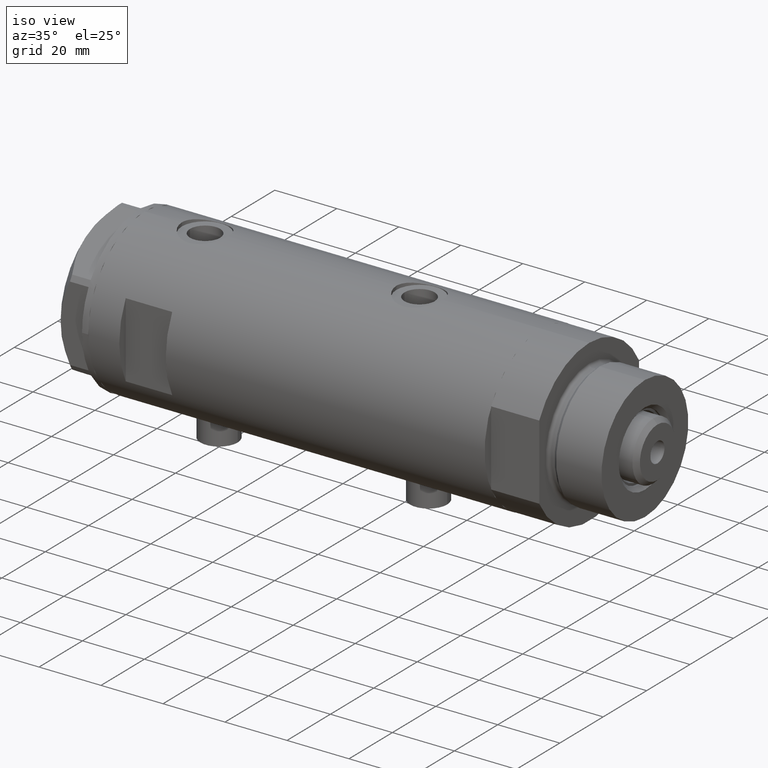
[diagram: clean part render]
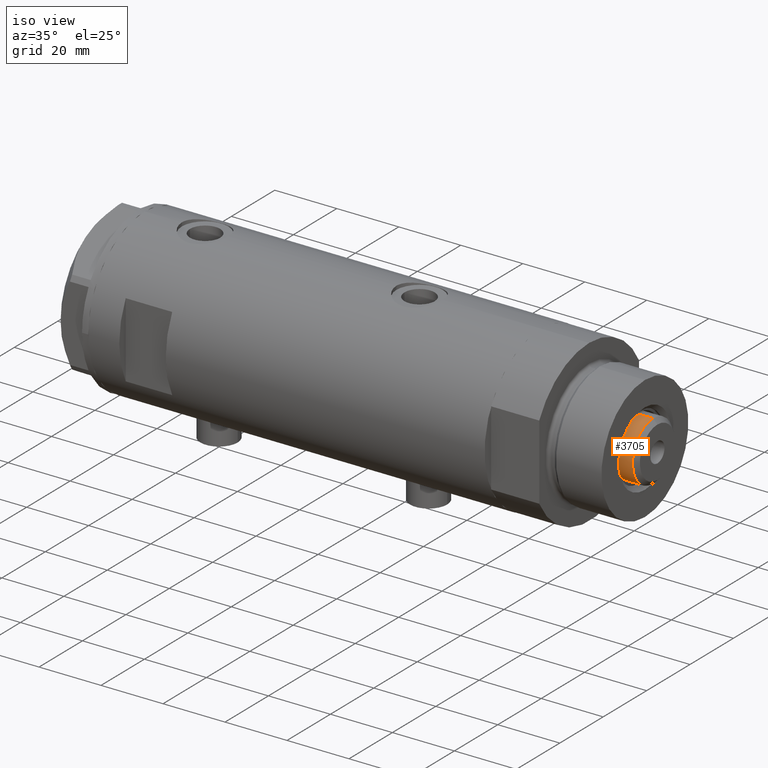
[diagram: same view with one face highlighted and labeled with its STEP entity id]
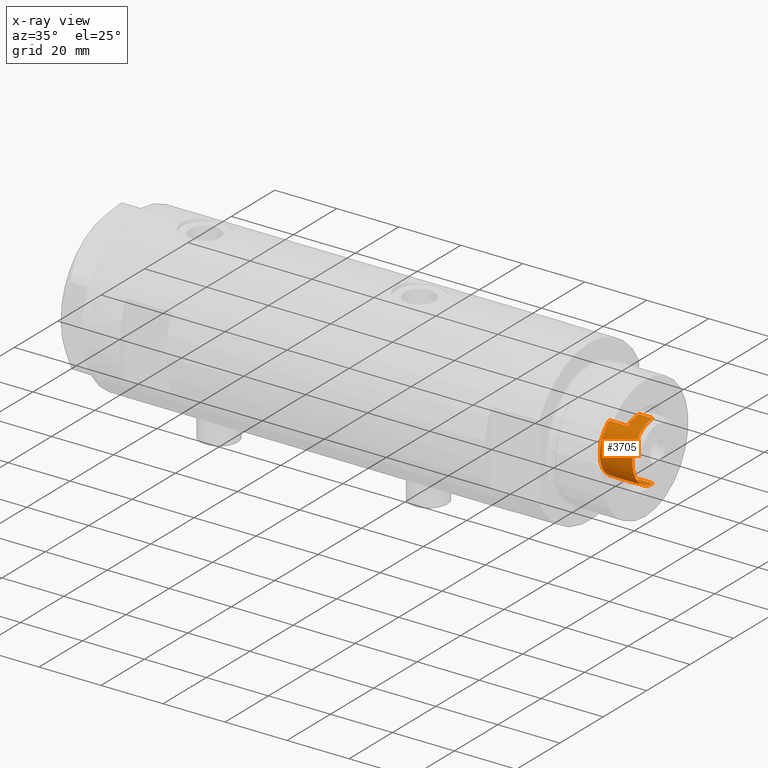
[diagram: x-ray of the same camera — body ghosted, the highlighted face saturated]
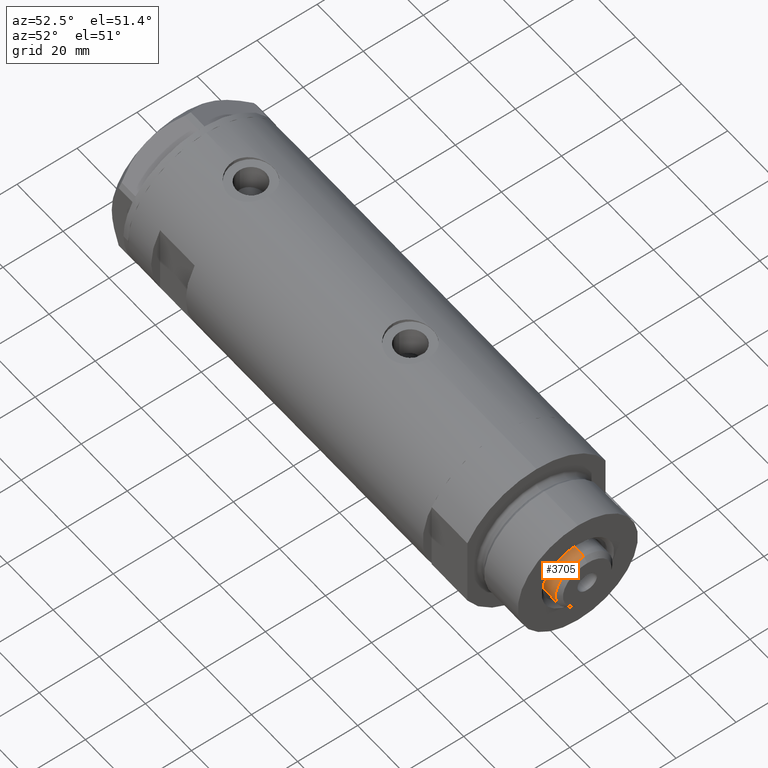
[diagram: same view with one face highlighted and labeled with its STEP entity id]
A machine part, iso view. The second image highlights one B-rep face of the part: STEP entity #3705.
The next image is the same camera in x-ray: the body ghosted, the highlighted face saturated — about 0% of this face is hidden behind the body in this view.
A second angle (auxiliary view) of the same face is appended — the face is thin or edge-on in the first view.
In plain terms, the highlighted cylindrical surface (edge-blend (fillet) strip) has radius 9.5 mm, axis along (-1, -0, 0).
Its self-contained STEP definition (entity closure, byte-faithful):
#87 = CARTESIAN_POINT ( 'NONE',  ( 0.000000000000000000, 0.000000000000000000, 140.2499999999999716 ) ) ;
#133 = EDGE_CURVE ( 'NONE', #2853, #2206, #2076, .T. ) ;
#255 = CARTESIAN_POINT ( 'NONE',  ( 7.982950582334834344, -5.150000000000009237, 129.6499999999999773 ) ) ;
#444 = DIRECTION ( 'NONE',  ( 0.000000000000000000, 0.000000000000000000, -1.000000000000000000 ) ) ;
#732 = AXIS2_PLACEMENT_3D ( 'NONE', #911, #2141, #3311 ) ;
#772 = DIRECTION ( 'NONE',  ( -1.000000000000000000, 0.000000000000000000, 0.000000000000000000 ) ) ;
#886 = CARTESIAN_POINT ( 'NONE',  ( -7.982950582334825462, -5.150000000000003020, 135.6500000000000057 ) ) ;
#911 = CARTESIAN_POINT ( 'NONE',  ( 0.000000000000000000, 0.000000000000000000, 135.6500000000000057 ) ) ;
#1095 = VECTOR ( 'NONE', #1146, 1000.000000000000000 ) ;
#1146 = DIRECTION ( 'NONE',  ( -0.000000000000000000, -0.000000000000000000, -1.000000000000000000 ) ) ;
#1176 = DIRECTION ( 'NONE',  ( 1.000000000000000000, 0.000000000000000000, 0.000000000000000000 ) ) ;
#1234 = CARTESIAN_POINT ( 'NONE',  ( 0.000000000000000000, 0.000000000000000000, 129.6499999999999773 ) ) ;
#1297 = VECTOR ( 'NONE', #3872, 1000.000000000000000 ) ;
#1428 = EDGE_LOOP ( 'NONE', ( #1869, #2351, #3296, #2105, #2399, #2627, #1638, #2025 ) ) ;
#1471 = DIRECTION ( 'NONE',  ( 1.000000000000000000, 0.000000000000000000, 0.000000000000000000 ) ) ;
#1532 = CARTESIAN_POINT ( 'NONE',  ( 0.000000000000000000, 0.000000000000000000, 135.6500000000000057 ) ) ;
#1559 = VERTEX_POINT ( 'NONE', #3492 ) ;
#1638 = ORIENTED_EDGE ( 'NONE', *, *, #3209, .F. ) ;
#1666 = CARTESIAN_POINT ( 'NONE',  ( -7.982950582334825462, -5.150000000000019007, 129.6499999999999773 ) ) ;
#1687 = VERTEX_POINT ( 'NONE', #2044 ) ;
#1836 = VERTEX_POINT ( 'NONE', #255 ) ;
#1869 = ORIENTED_EDGE ( 'NONE', *, *, #2034, .F. ) ;
#2025 = ORIENTED_EDGE ( 'NONE', *, *, #4696, .T. ) ;
#2034 = EDGE_CURVE ( 'NONE', #3251, #1559, #4733, .T. ) ;
#2044 = CARTESIAN_POINT ( 'NONE',  ( -9.500000000000001776, 0.000000000000000000, 140.2499999999999716 ) ) ;
#2076 = LINE ( 'NONE', #4109, #3980 ) ;
#2098 = CARTESIAN_POINT ( 'NONE',  ( -9.500000000000000000, 0.000000000000000000, 135.6500000000000057 ) ) ;
#2105 = ORIENTED_EDGE ( 'NONE', *, *, #4437, .T. ) ;
#2141 = DIRECTION ( 'NONE',  ( 0.000000000000000000, 0.000000000000000000, 1.000000000000000000 ) ) ;
#2149 = AXIS2_PLACEMENT_3D ( 'NONE', #87, #444, #1176 ) ;
#2206 = VERTEX_POINT ( 'NONE', #1666 ) ;
#2347 = DIRECTION ( 'NONE',  ( -0.000000000000000000, -0.000000000000000000, -1.000000000000000000 ) ) ;
#2351 = ORIENTED_EDGE ( 'NONE', *, *, #4232, .T. ) ;
#2367 = EDGE_CURVE ( 'NONE', #2206, #1836, #4670, .T. ) ;
#2391 = DIRECTION ( 'NONE',  ( 1.000000000000000000, 0.000000000000000000, 0.000000000000000000 ) ) ;
#2399 = ORIENTED_EDGE ( 'NONE', *, *, #133, .T. ) ;
#2400 = CARTESIAN_POINT ( 'NONE',  ( 9.500000000000001776, 1.163414459189985682E-15, 140.2499999999999716 ) ) ;
#2407 = CIRCLE ( 'NONE', #4684, 9.500000000000000000 ) ;
#2411 = VECTOR ( 'NONE', #2807, 1000.000000000000000 ) ;
#2627 = ORIENTED_EDGE ( 'NONE', *, *, #2367, .T. ) ;
#2630 = LINE ( 'NONE', #4012, #1297 ) ;
#2784 = CARTESIAN_POINT ( 'NONE',  ( -9.500000000000001776, 0.000000000000000000, 135.6500000000000057 ) ) ;
#2807 = DIRECTION ( 'NONE',  ( -0.000000000000000000, -0.000000000000000000, -1.000000000000000000 ) ) ;
#2848 = DIRECTION ( 'NONE',  ( -0.000000000000000000, -0.000000000000000000, -1.000000000000000000 ) ) ;
#2853 = VERTEX_POINT ( 'NONE', #886 ) ;
#2909 = CIRCLE ( 'NONE', #2149, 9.500000000000001776 ) ;
#2954 = VERTEX_POINT ( 'NONE', #4817 ) ;
#3008 = CIRCLE ( 'NONE', #732, 9.500000000000000000 ) ;
#3087 = AXIS2_PLACEMENT_3D ( 'NONE', #1532, #2347, #772 ) ;
#3137 = LINE ( 'NONE', #2784, #2411 ) ;
#3157 = CARTESIAN_POINT ( 'NONE',  ( 0.000000000000000000, 0.000000000000000000, 135.6500000000000057 ) ) ;
#3209 = EDGE_CURVE ( 'NONE', #2954, #1836, #2630, .T. ) ;
#3251 = VERTEX_POINT ( 'NONE', #2400 ) ;
#3272 = DIRECTION ( 'NONE',  ( 0.000000000000000000, 0.000000000000000000, 1.000000000000000000 ) ) ;
#3296 = ORIENTED_EDGE ( 'NONE', *, *, #4923, .T. ) ;
#3311 = DIRECTION ( 'NONE',  ( 1.000000000000000000, 0.000000000000000000, 0.000000000000000000 ) ) ;
#3492 = CARTESIAN_POINT ( 'NONE',  ( 9.500000000000000000, 1.163414459189985485E-15, 135.6500000000000057 ) ) ;
#3542 = FACE_OUTER_BOUND ( 'NONE', #1428, .T. ) ;
#3629 = CARTESIAN_POINT ( 'NONE',  ( 9.500000000000001776, 1.163414459189985682E-15, 135.6500000000000057 ) ) ;
#3705 = ADVANCED_FACE ( 'NONE', ( #3542 ), #4324, .T. ) ;
#3872 = DIRECTION ( 'NONE',  ( -0.000000000000000000, -0.000000000000000000, -1.000000000000000000 ) ) ;
#3901 = VERTEX_POINT ( 'NONE', #2098 ) ;
#3949 = DIRECTION ( 'NONE',  ( 0.000000000000000000, 0.000000000000000000, 1.000000000000000000 ) ) ;
#3980 = VECTOR ( 'NONE', #2848, 1000.000000000000000 ) ;
#4012 = CARTESIAN_POINT ( 'NONE',  ( 7.982950582334832568, -5.149999999999997691, 135.6500000000000057 ) ) ;
#4109 = CARTESIAN_POINT ( 'NONE',  ( -7.982950582334829015, -5.150000000000001243, 135.6500000000000057 ) ) ;
#4232 = EDGE_CURVE ( 'NONE', #3251, #1687, #2909, .T. ) ;
#4324 = CYLINDRICAL_SURFACE ( 'NONE', #3087, 9.500000000000001776 ) ;
#4437 = EDGE_CURVE ( 'NONE', #3901, #2853, #2407, .T. ) ;
#4585 = AXIS2_PLACEMENT_3D ( 'NONE', #1234, #3272, #2391 ) ;
#4670 = CIRCLE ( 'NONE', #4585, 9.500000000000001776 ) ;
#4684 = AXIS2_PLACEMENT_3D ( 'NONE', #3157, #3949, #1471 ) ;
#4696 = EDGE_CURVE ( 'NONE', #2954, #1559, #3008, .T. ) ;
#4733 = LINE ( 'NONE', #3629, #1095 ) ;
#4817 = CARTESIAN_POINT ( 'NONE',  ( 7.982950582334832568, -5.149999999999997691, 135.6500000000000057 ) ) ;
#4923 = EDGE_CURVE ( 'NONE', #1687, #3901, #3137, .T. ) ;